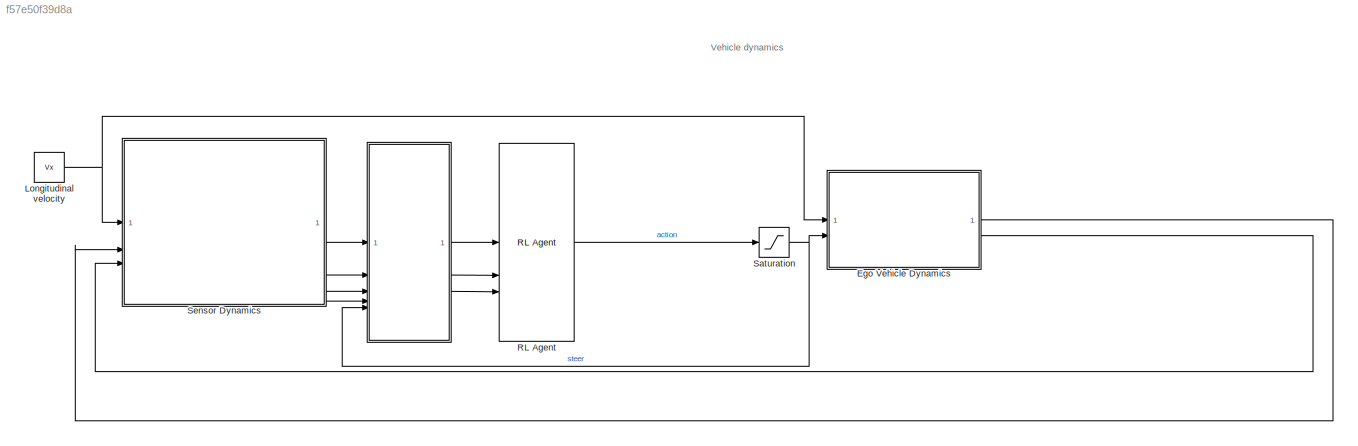
MODEL slx_f57e50f39d8a
KIND model
CONFIG AbsTol = auto
CONFIG EnableMultiTasking = off
CONFIG FixedStep = auto
CONFIG MaxStep = auto
CONFIG MinStep = auto
CONFIG RelTol = 1e-3
CONFIG SampleTimeConstraint = Unconstrained
CONFIG SolverName = VariableStepAuto
CONFIG StartTime = 0.0
CONFIG StopTime = inf
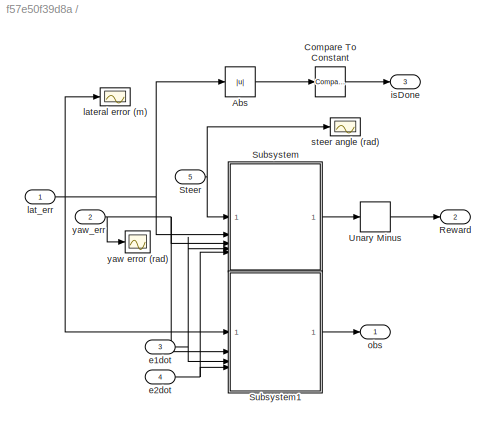
BLOCK [SubSystem]  
BLOCK [Abs]  /Abs
  SaturateOnIntegerOverflow = off
BLOCK [Reference]  /Compare To Constant  REF=simulink/Logic and Bit
Operations/Compare
To Constant
  SourceBlock = simulink/Logic and Bit\nOperations/Compare\nTo Constant
  SourceType = Compare To Constant
BLOCK [Outport]  /Reward
  Port = 2
  VectorParamsAs1DForOutWhenUnconnected = off
BLOCK [Inport]  /Steer
  Port = 5
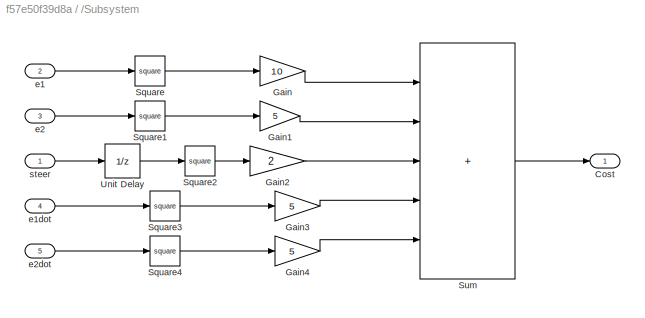
BLOCK [SubSystem]  /Subsystem
BLOCK [Outport]  /Subsystem/Cost
  VectorParamsAs1DForOutWhenUnconnected = off
BLOCK [Gain]  /Subsystem/Gain
  Gain = 10
BLOCK [Gain]  /Subsystem/Gain1
  Gain = 5
BLOCK [Gain]  /Subsystem/Gain2
  Gain = 2
BLOCK [Gain]  /Subsystem/Gain3
  Gain = 5
BLOCK [Gain]  /Subsystem/Gain4
  Gain = 5
BLOCK [Math]  /Subsystem/Square
  Operator = square
  SignedPower = on
BLOCK [Math]  /Subsystem/Square1
  Operator = square
  SignedPower = on
BLOCK [Math]  /Subsystem/Square2
  Operator = square
  SignedPower = on
BLOCK [Math]  /Subsystem/Square3
  Operator = square
  SignedPower = on
BLOCK [Math]  /Subsystem/Square4
  Operator = square
  SignedPower = on
BLOCK [Sum]  /Subsystem/Sum
  IconShape = rectangular
  Inputs = +++++
BLOCK [UnitDelay]  /Subsystem/Unit Delay
  HasFrameUpgradeWarning = on
  SampleTime = -1
BLOCK [Inport]  /Subsystem/e1
  Port = 2
BLOCK [Inport]  /Subsystem/e1dot
  Port = 4
BLOCK [Inport]  /Subsystem/e2
  Port = 3
BLOCK [Inport]  /Subsystem/e2dot
  Port = 5
BLOCK [Inport]  /Subsystem/steer
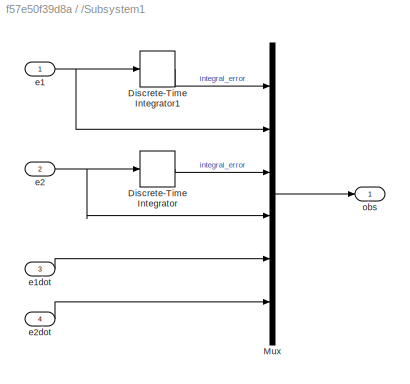
BLOCK [SubSystem]  /Subsystem1
BLOCK [DiscreteIntegrator]  /Subsystem1/Discrete-Time Integrator
  ICPrevOutput = DiscIntNeverNeededParam
  ICPrevScaledInput = DiscIntNeverNeededParam
  InitialConditionSetting = Auto
  SampleTime = -1
BLOCK [DiscreteIntegrator]  /Subsystem1/Discrete-Time Integrator1
  ICPrevOutput = DiscIntNeverNeededParam
  ICPrevScaledInput = DiscIntNeverNeededParam
  InitialConditionSetting = Auto
  SampleTime = -1
BLOCK [Mux]  /Subsystem1/Mux
  DisplayOption = bar
  Inputs = 6
BLOCK [Inport]  /Subsystem1/e1
BLOCK [Inport]  /Subsystem1/e1dot
  Port = 3
BLOCK [Inport]  /Subsystem1/e2
  Port = 2
BLOCK [Inport]  /Subsystem1/e2dot
  Port = 4
BLOCK [Outport]  /Subsystem1/obs
  VectorParamsAs1DForOutWhenUnconnected = off
BLOCK [UnaryMinus]  /Unary Minus
BLOCK [Inport]  /e1dot 
  Port = 3
BLOCK [Inport]  /e2dot
  Port = 4
BLOCK [Outport]  /isDone
  Port = 3
  VectorParamsAs1DForOutWhenUnconnected = off
BLOCK [Inport]  /lat_err
BLOCK [Scope]  /lateral error (m)
  Floating = off
  NumInputPorts = 1
  ScopeSpecificationString = Simulink.scopes.TimeScopeBlockCfg('CurrentConfiguration', extmgr.ConfigurationSet(extmgr.Configuration('Core','General UI',true),extmgr.Configuration('Core','Source UI',true),extmgr.Configuration('Sources','WiredSimulink',true,'DataLoggingVariableName','ScopeData2'),extmgr.Configuration('Visuals','Time Domain',true,'SerializedDisplays',{struct('MinYLimReal','-0.14732','MaxYLimReal','0.05749','YLab...<+1414ch>
BLOCK [Outport]  /obs
  VectorParamsAs1DForOutWhenUnconnected = off
BLOCK [Scope]  /steer angle (rad) 
  Floating = off
  NumInputPorts = 1
  ScopeSpecificationString = Simulink.scopes.TimeScopeBlockCfg('CurrentConfiguration', extmgr.ConfigurationSet(extmgr.Configuration('Core','General UI',true),extmgr.Configuration('Core','Source UI',true),extmgr.Configuration('Sources','WiredSimulink',true),extmgr.Configuration('Visuals','Time Domain',true,'SerializedDisplays',{struct('MinYLimReal','-0.20071','MaxYLimReal','0.23562','YLabelReal','','MinYLimMag','0.00000','MaxY...<+1375ch>
BLOCK [Scope]  /yaw error (rad)
  Floating = off
  NumInputPorts = 1
  ScopeSpecificationString = Simulink.scopes.TimeScopeBlockCfg('CurrentConfiguration', extmgr.ConfigurationSet(extmgr.Configuration('Core','General UI',true),extmgr.Configuration('Core','Source UI',true),extmgr.Configuration('Sources','WiredSimulink',true,'DataLoggingVariableName','ScopeData3'),extmgr.Configuration('Visuals','Time Domain',true,'SerializedDisplays',{struct('MinYLimReal','-0.0324','MaxYLimReal','0.03793','YLabe...<+1412ch>
BLOCK [Inport]  /yaw_err
  Port = 2
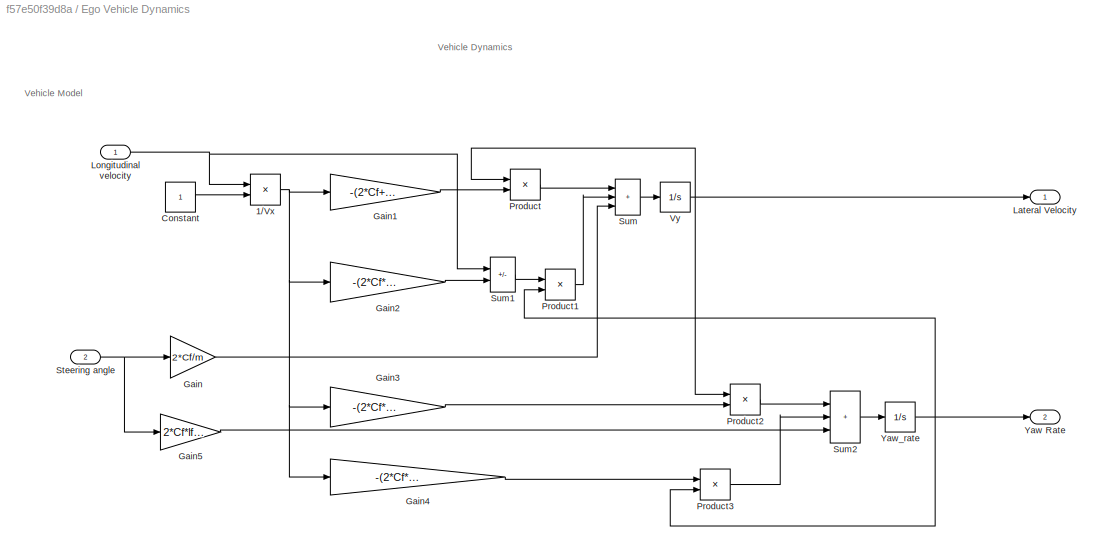
BLOCK [SubSystem] Ego Vehicle Dynamics
BLOCK [Product] Ego Vehicle Dynamics/1//Vx
  Inputs = /*
BLOCK [Constant] Ego Vehicle Dynamics/Constant
BLOCK [Gain] Ego Vehicle Dynamics/Gain
  Gain = 2*Cf/m
BLOCK [Gain] Ego Vehicle Dynamics/Gain1
  Gain = -(2*Cf+2*Cr)/m
BLOCK [Gain] Ego Vehicle Dynamics/Gain2
  Gain = -(2*Cf*lf-2*Cr*lr)/m
BLOCK [Gain] Ego Vehicle Dynamics/Gain3
  Gain = -(2*Cf*lf-2*Cr*lr)/Iz
BLOCK [Gain] Ego Vehicle Dynamics/Gain4
  Gain = -(2*Cf*lf^2+2*Cr*lr^2)/Iz
BLOCK [Gain] Ego Vehicle Dynamics/Gain5
  Gain = 2*Cf*lf/Iz
BLOCK [Outport] Ego Vehicle Dynamics/Lateral Velocity
  VectorParamsAs1DForOutWhenUnconnected = off
BLOCK [Inport] Ego Vehicle Dynamics/Longitudinal velocity
BLOCK [Product] Ego Vehicle Dynamics/Product
BLOCK [Product] Ego Vehicle Dynamics/Product1
BLOCK [Product] Ego Vehicle Dynamics/Product2
BLOCK [Product] Ego Vehicle Dynamics/Product3
BLOCK [Inport] Ego Vehicle Dynamics/Steering angle
  Port = 2
BLOCK [Sum] Ego Vehicle Dynamics/Sum
  IconShape = rectangular
  Inputs = +++
BLOCK [Sum] Ego Vehicle Dynamics/Sum1
  IconShape = rectangular
  Inputs = -+
BLOCK [Sum] Ego Vehicle Dynamics/Sum2
  IconShape = rectangular
  Inputs = +++
BLOCK [Integrator] Ego Vehicle Dynamics/Vy
BLOCK [Outport] Ego Vehicle Dynamics/Yaw Rate
  Port = 2
  VectorParamsAs1DForOutWhenUnconnected = off
BLOCK [Integrator] Ego Vehicle Dynamics/Yaw_rate 
BLOCK [Constant] Longitudinal velocity
  SampleTime = Ts
  Value = Vx
BLOCK [Reference] RL Agent  REF=rllib/RL Agent
  SourceBlock = rllib/RL Agent
  SourceType = RL Agent
BLOCK [Saturate] Saturation
  LowerLimit = u_min
  UpperLimit = u_max
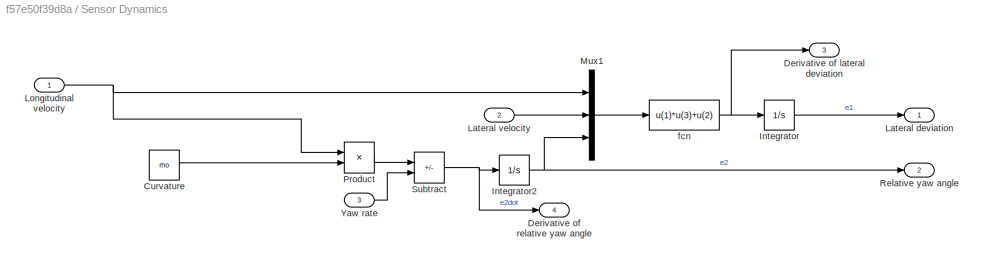
BLOCK [SubSystem] Sensor Dynamics
BLOCK [Constant] Sensor Dynamics/Curvature
  Value = rho
BLOCK [Outport] Sensor Dynamics/Derivative of lateral deviation
  Port = 3
  VectorParamsAs1DForOutWhenUnconnected = off
BLOCK [Outport] Sensor Dynamics/Derivative of relative yaw angle
  Port = 4
  VectorParamsAs1DForOutWhenUnconnected = off
BLOCK [Integrator] Sensor Dynamics/Integrator
  InitialCondition = e1_initial
BLOCK [Integrator] Sensor Dynamics/Integrator2
  InitialCondition = e2_initial
BLOCK [Outport] Sensor Dynamics/Lateral deviation
  VectorParamsAs1DForOutWhenUnconnected = off
BLOCK [Inport] Sensor Dynamics/Lateral velocity
  Port = 2
BLOCK [Inport] Sensor Dynamics/Longitudinal velocity
BLOCK [Mux] Sensor Dynamics/Mux1
  DisplayOption = bar
  Inputs = [1 1 1]
BLOCK [Product] Sensor Dynamics/Product
BLOCK [Outport] Sensor Dynamics/Relative yaw angle
  Port = 2
  VectorParamsAs1DForOutWhenUnconnected = off
BLOCK [Sum] Sensor Dynamics/Subtract
  IconShape = rectangular
  Inputs = -+
BLOCK [Inport] Sensor Dynamics/Yaw rate
  Port = 3
BLOCK [Fcn] Sensor Dynamics/fcn
  Expr = u(1)*u(3)+u(2)
ANNOTATION (root): Vehicle dynamics
ANNOTATION Ego Vehicle Dynamics: Vehicle Dynamics
ANNOTATION Ego Vehicle Dynamics: Vehicle Model
LINE  /Abs:1 ->  /Compare To Constant:1
LINE  /Compare To Constant:1 ->  /isDone:1
NET  /Steer:1 ->  /Subsystem:1,  /steer angle (rad) :1
LINE  /Subsystem/Gain1:1 ->  /Subsystem/Sum:2
LINE  /Subsystem/Gain2:1 ->  /Subsystem/Sum:3
LINE  /Subsystem/Gain3:1 ->  /Subsystem/Sum:4
LINE  /Subsystem/Gain4:1 ->  /Subsystem/Sum:5
LINE  /Subsystem/Gain:1 ->  /Subsystem/Sum:1
LINE  /Subsystem/Square1:1 ->  /Subsystem/Gain1:1
LINE  /Subsystem/Square2:1 ->  /Subsystem/Gain2:1
LINE  /Subsystem/Square3:1 ->  /Subsystem/Gain3:1
LINE  /Subsystem/Square4:1 ->  /Subsystem/Gain4:1
LINE  /Subsystem/Square:1 ->  /Subsystem/Gain:1
LINE  /Subsystem/Sum:1 ->  /Subsystem/Cost:1
LINE  /Subsystem/Unit Delay:1 ->  /Subsystem/Square2:1
LINE  /Subsystem/e1:1 ->  /Subsystem/Square:1
LINE  /Subsystem/e1dot:1 ->  /Subsystem/Square3:1
LINE  /Subsystem/e2:1 ->  /Subsystem/Square1:1
LINE  /Subsystem/e2dot:1 ->  /Subsystem/Square4:1
LINE  /Subsystem/steer:1 ->  /Subsystem/Unit Delay:1
LINE  /Subsystem1/Discrete-Time Integrator1:1 ->  /Subsystem1/Mux:1
LINE  /Subsystem1/Discrete-Time Integrator:1 ->  /Subsystem1/Mux:3
LINE  /Subsystem1/Mux:1 ->  /Subsystem1/obs:1
NET  /Subsystem1/e1:1 ->  /Subsystem1/Discrete-Time Integrator1:1,  /Subsystem1/Mux:2
LINE  /Subsystem1/e1dot:1 ->  /Subsystem1/Mux:5
NET  /Subsystem1/e2:1 ->  /Subsystem1/Discrete-Time Integrator:1,  /Subsystem1/Mux:4
LINE  /Subsystem1/e2dot:1 ->  /Subsystem1/Mux:6
LINE  /Subsystem1:1 ->  /obs:1
LINE  /Subsystem:1 ->  /Unary Minus:1
LINE  /Unary Minus:1 ->  /Reward:1
NET  /e1dot :1 ->  /Subsystem1:3,  /Subsystem:4
NET  /e2dot:1 ->  /Subsystem1:4,  /Subsystem:5
NET  /lat_err:1 ->  /Abs:1,  /Subsystem1:1,  /Subsystem:2,  /lateral error (m):1
NET  /yaw_err:1 ->  /Subsystem1:2,  /Subsystem:3,  /yaw error (rad):1
LINE  :1 -> RL Agent:1
LINE  :2 -> RL Agent:2
LINE  :3 -> RL Agent:3
NET Ego Vehicle Dynamics/1//Vx:1 -> Ego Vehicle Dynamics/Gain1:1, Ego Vehicle Dynamics/Gain2:1, Ego Vehicle Dynamics/Gain3:1, Ego Vehicle Dynamics/Gain4:1
LINE Ego Vehicle Dynamics/Constant:1 -> Ego Vehicle Dynamics/1//Vx:2
LINE Ego Vehicle Dynamics/Gain1:1 -> Ego Vehicle Dynamics/Product:2
LINE Ego Vehicle Dynamics/Gain2:1 -> Ego Vehicle Dynamics/Sum1:2
LINE Ego Vehicle Dynamics/Gain3:1 -> Ego Vehicle Dynamics/Product2:2
LINE Ego Vehicle Dynamics/Gain4:1 -> Ego Vehicle Dynamics/Product3:1
LINE Ego Vehicle Dynamics/Gain5:1 -> Ego Vehicle Dynamics/Sum2:3
LINE Ego Vehicle Dynamics/Gain:1 -> Ego Vehicle Dynamics/Sum:3
NET Ego Vehicle Dynamics/Longitudinal velocity:1 -> Ego Vehicle Dynamics/1//Vx:1, Ego Vehicle Dynamics/Sum1:1
LINE Ego Vehicle Dynamics/Product1:1 -> Ego Vehicle Dynamics/Sum:2
LINE Ego Vehicle Dynamics/Product2:1 -> Ego Vehicle Dynamics/Sum2:1
LINE Ego Vehicle Dynamics/Product3:1 -> Ego Vehicle Dynamics/Sum2:2
LINE Ego Vehicle Dynamics/Product:1 -> Ego Vehicle Dynamics/Sum:1
NET Ego Vehicle Dynamics/Steering angle:1 -> Ego Vehicle Dynamics/Gain5:1, Ego Vehicle Dynamics/Gain:1
LINE Ego Vehicle Dynamics/Sum1:1 -> Ego Vehicle Dynamics/Product1:1
LINE Ego Vehicle Dynamics/Sum2:1 -> Ego Vehicle Dynamics/Yaw_rate :1
LINE Ego Vehicle Dynamics/Sum:1 -> Ego Vehicle Dynamics/Vy:1
NET Ego Vehicle Dynamics/Vy:1 -> Ego Vehicle Dynamics/Lateral Velocity:1, Ego Vehicle Dynamics/Product2:1, Ego Vehicle Dynamics/Product:1
NET Ego Vehicle Dynamics/Yaw_rate :1 -> Ego Vehicle Dynamics/Product1:2, Ego Vehicle Dynamics/Product3:2, Ego Vehicle Dynamics/Yaw Rate:1
LINE Ego Vehicle Dynamics:1 -> Sensor Dynamics:2
LINE Ego Vehicle Dynamics:2 -> Sensor Dynamics:3
NET Longitudinal velocity:1 -> Ego Vehicle Dynamics:1, Sensor Dynamics:1
LINE RL Agent:1 -> Saturation:1
NET Saturation:1 ->  :5, Ego Vehicle Dynamics:2
LINE Sensor Dynamics/Curvature:1 -> Sensor Dynamics/Product:2
NET Sensor Dynamics/Integrator2:1 -> Sensor Dynamics/Mux1:3, Sensor Dynamics/Relative yaw angle:1
LINE Sensor Dynamics/Integrator:1 -> Sensor Dynamics/Lateral deviation:1
LINE Sensor Dynamics/Lateral velocity:1 -> Sensor Dynamics/Mux1:2
NET Sensor Dynamics/Longitudinal velocity:1 -> Sensor Dynamics/Mux1:1, Sensor Dynamics/Product:1
LINE Sensor Dynamics/Mux1:1 -> Sensor Dynamics/fcn:1
LINE Sensor Dynamics/Product:1 -> Sensor Dynamics/Subtract:1
NET Sensor Dynamics/Subtract:1 -> Sensor Dynamics/Derivative of relative yaw angle:1, Sensor Dynamics/Integrator2:1
LINE Sensor Dynamics/Yaw rate:1 -> Sensor Dynamics/Subtract:2
NET Sensor Dynamics/fcn:1 -> Sensor Dynamics/Derivative of lateral deviation:1, Sensor Dynamics/Integrator:1
LINE Sensor Dynamics:1 ->  :1
LINE Sensor Dynamics:2 ->  :2
LINE Sensor Dynamics:3 ->  :3
LINE Sensor Dynamics:4 ->  :4
note: NET lines group one-source signal fan-out (src -> all destinations, sorted); 1:1 wires keep LINE
